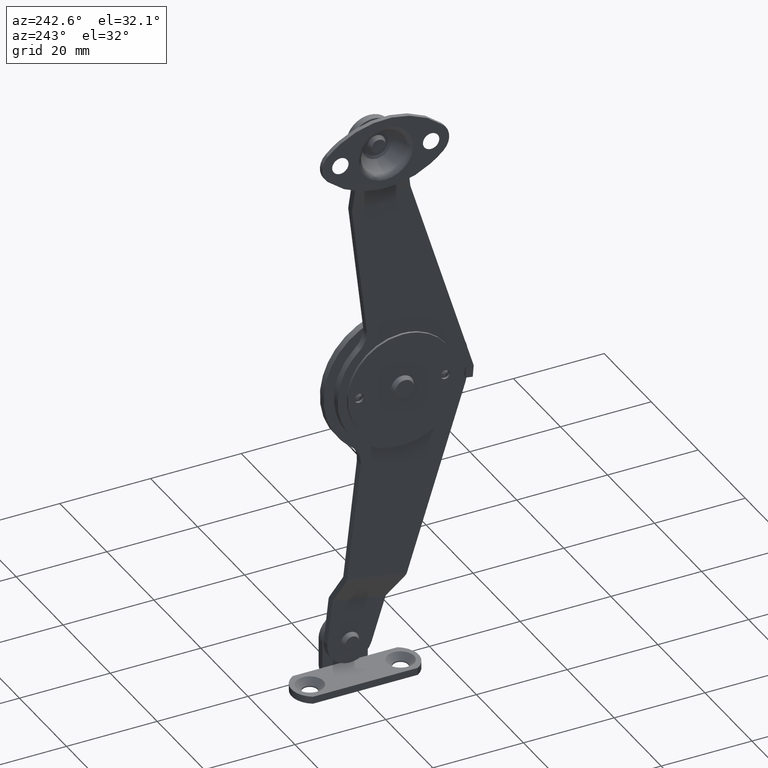
[diagram: clean part render]
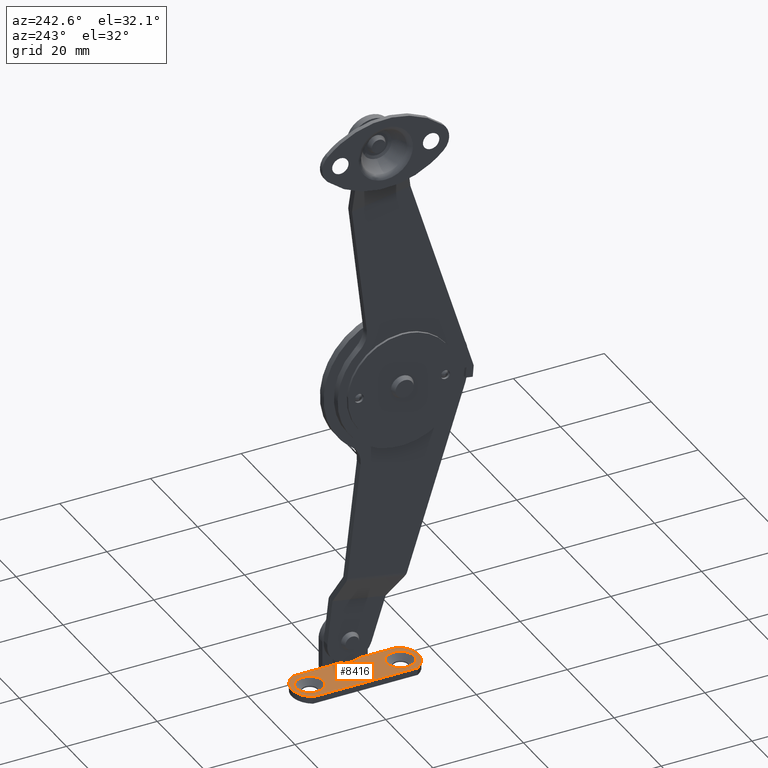
[diagram: same view with one face highlighted and labeled with its STEP entity id]
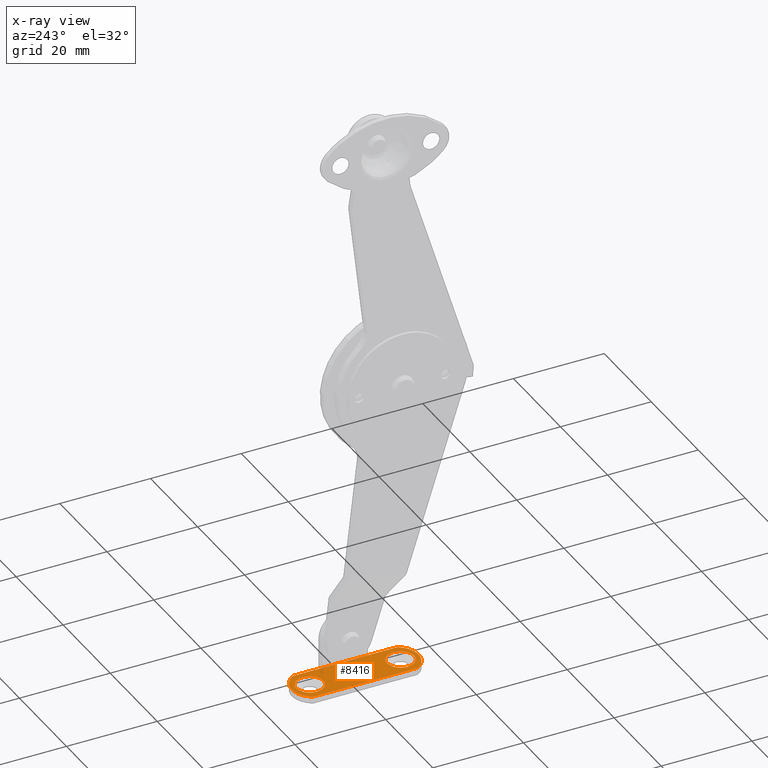
[diagram: x-ray of the same camera — body ghosted, the highlighted face saturated]
A machine part, auxiliary view. The second image highlights one B-rep face of the part: STEP entity #8416.
The next image is the same camera in x-ray: the body ghosted, the highlighted face saturated — about 0% of this face is hidden behind the body in this view.
In plain terms, the highlighted face is a freeform B-spline surface patch.
Its self-contained STEP definition (entity closure, byte-faithful):
#7144=CARTESIAN_POINT('',(13.342303060658480,-12.980407713777140,-66.499999745720089));
#7145=VERTEX_POINT('',#7144);
#7151=CARTESIAN_POINT('',(16.0,-10.0,-66.500000000000000));
#7152=VERTEX_POINT('',#7151);
#7153=CARTESIAN_POINT('',(13.342303060658486,-12.980407713777142,-66.499999745720089));
#7154=CARTESIAN_POINT('',(16.000000000000004,-12.675168079859535,-66.500000000000000));
#7155=CARTESIAN_POINT('',(16.0,-10.0,-66.500000000000000));
#7163=(BOUNDED_CURVE()B_SPLINE_CURVE(2,(#7153,#7154,#7155),.UNSPECIFIED.,.F.,.U.)B_SPLINE_CURVE_WITH_KNOTS((3,3),(0.269767814784498,0.500000000000000),.UNSPECIFIED.)CURVE()GEOMETRIC_REPRESENTATION_ITEM()RATIONAL_B_SPLINE_CURVE((0.957343620259238,0.730266216791106,1.0))REPRESENTATION_ITEM(''));
#7164=EDGE_CURVE('',#7145,#7152,#7163,.T.);
#7166=CARTESIAN_POINT('',(13.183146121672220,-7.005595526214339,-66.499999890914779));
#7167=VERTEX_POINT('',#7166);
#7168=CARTESIAN_POINT('',(16.0,-10.0,-66.500000000000000));
#7169=CARTESIAN_POINT('',(15.999999999999995,-7.177882736724869,-66.499999999999986));
#7170=CARTESIAN_POINT('',(13.183146121672230,-7.005595526214339,-66.499999890914779));
#7178=(BOUNDED_CURVE()B_SPLINE_CURVE(2,(#7168,#7169,#7170),.UNSPECIFIED.,.F.,.U.)B_SPLINE_CURVE_WITH_KNOTS((3,3),(0.500000000000000,0.739332905032843),.UNSPECIFIED.)CURVE()GEOMETRIC_REPRESENTATION_ITEM()RATIONAL_B_SPLINE_CURVE((1.0,0.719604060307825,0.976071919063187))REPRESENTATION_ITEM(''));
#7179=EDGE_CURVE('',#7152,#7167,#7178,.T.);
#7274=CARTESIAN_POINT('',(9.999999999999998,-10.0,-66.500000000000000));
#7275=VERTEX_POINT('',#7274);
#7276=CARTESIAN_POINT('',(13.183146121672227,-7.005595526214340,-66.499999890914779));
#7277=CARTESIAN_POINT('',(13.091658787695817,-6.999999999999999,-66.499999999999986));
#7278=CARTESIAN_POINT('',(13.0,-7.0,-66.500000000000000));
#7279=CARTESIAN_POINT('',(9.999999999999998,-6.999999999999999,-66.500000000000000));
#7280=CARTESIAN_POINT('',(9.999999999999998,-10.0,-66.500000000000000));
#7288=(BOUNDED_CURVE()B_SPLINE_CURVE(2,(#7276,#7277,#7278,#7279,#7280),.UNSPECIFIED.,.F.,.U.)B_SPLINE_CURVE_WITH_KNOTS((3,2,3),(0.739332905032842,0.750000000000000,1.0),.UNSPECIFIED.)CURVE()GEOMETRIC_REPRESENTATION_ITEM()RATIONAL_B_SPLINE_CURVE((0.976071919063185,0.987502720878721,1.0,0.707106781186548,1.0))REPRESENTATION_ITEM(''));
#7289=EDGE_CURVE('',#7167,#7275,#7288,.T.);
#7291=CARTESIAN_POINT('',(9.999999999999998,-10.0,-66.500000000000000));
#7292=CARTESIAN_POINT('',(9.999999999999998,-13.000000000000004,-66.500000000000000));
#7293=CARTESIAN_POINT('',(13.0,-13.0,-66.500000000000000));
#7294=CARTESIAN_POINT('',(13.171712228908214,-13.0,-66.500000000000000));
#7295=CARTESIAN_POINT('',(13.342303060658486,-12.980407713777142,-66.499999745720089));
#7303=(BOUNDED_CURVE()B_SPLINE_CURVE(2,(#7291,#7292,#7293,#7294,#7295),.UNSPECIFIED.,.F.,.U.)B_SPLINE_CURVE_WITH_KNOTS((3,2,3),(0.0,0.250000000000000,0.269767814784498),.UNSPECIFIED.)CURVE()GEOMETRIC_REPRESENTATION_ITEM()RATIONAL_B_SPLINE_CURVE((1.0,0.707106781186548,1.0,0.976840564395442,0.957343620259238))REPRESENTATION_ITEM(''));
#7304=EDGE_CURVE('',#7275,#7145,#7303,.T.);
#7472=CARTESIAN_POINT('',(13.342303060658480,7.019592286222867,-66.499999745720089));
#7473=VERTEX_POINT('',#7472);
#7479=CARTESIAN_POINT('',(16.0,10.0,-66.500000000000000));
#7480=VERTEX_POINT('',#7479);
#7481=CARTESIAN_POINT('',(13.342303060658477,7.019592286222867,-66.499999745720089));
#7482=CARTESIAN_POINT('',(15.999999999999998,7.324831920140462,-66.500000000000000));
#7483=CARTESIAN_POINT('',(16.0,10.0,-66.500000000000000));
#7491=(BOUNDED_CURVE()B_SPLINE_CURVE(2,(#7481,#7482,#7483),.UNSPECIFIED.,.F.,.U.)B_SPLINE_CURVE_WITH_KNOTS((3,3),(0.269767814784497,0.500000000000000),.UNSPECIFIED.)CURVE()GEOMETRIC_REPRESENTATION_ITEM()RATIONAL_B_SPLINE_CURVE((0.957343620259239,0.730266216791106,1.0))REPRESENTATION_ITEM(''));
#7492=EDGE_CURVE('',#7473,#7480,#7491,.T.);
#7494=CARTESIAN_POINT('',(13.183146121672220,12.994404473785661,-66.499999890914765));
#7495=VERTEX_POINT('',#7494);
#7496=CARTESIAN_POINT('',(16.0,10.0,-66.500000000000000));
#7497=CARTESIAN_POINT('',(15.999999999999995,12.822117263275132,-66.499999999999986));
#7498=CARTESIAN_POINT('',(13.183146121672230,12.994404473785663,-66.499999890914765));
#7506=(BOUNDED_CURVE()B_SPLINE_CURVE(2,(#7496,#7497,#7498),.UNSPECIFIED.,.F.,.U.)B_SPLINE_CURVE_WITH_KNOTS((3,3),(0.500000000000000,0.739332905032843),.UNSPECIFIED.)CURVE()GEOMETRIC_REPRESENTATION_ITEM()RATIONAL_B_SPLINE_CURVE((1.0,0.719604060307825,0.976071919063187))REPRESENTATION_ITEM(''));
#7507=EDGE_CURVE('',#7480,#7495,#7506,.T.);
#7602=CARTESIAN_POINT('',(9.999999999999998,10.0,-66.500000000000000));
#7603=VERTEX_POINT('',#7602);
#7604=CARTESIAN_POINT('',(13.183146121672227,12.994404473785659,-66.499999890914779));
#7605=CARTESIAN_POINT('',(13.091658787695817,13.000000000000004,-66.499999999999986));
#7606=CARTESIAN_POINT('',(13.0,13.0,-66.500000000000000));
#7607=CARTESIAN_POINT('',(9.999999999999998,13.000000000000004,-66.500000000000000));
#7608=CARTESIAN_POINT('',(9.999999999999998,10.0,-66.500000000000000));
#7616=(BOUNDED_CURVE()B_SPLINE_CURVE(2,(#7604,#7605,#7606,#7607,#7608),.UNSPECIFIED.,.F.,.U.)B_SPLINE_CURVE_WITH_KNOTS((3,2,3),(0.739332905032842,0.750000000000000,1.0),.UNSPECIFIED.)CURVE()GEOMETRIC_REPRESENTATION_ITEM()RATIONAL_B_SPLINE_CURVE((0.976071919063185,0.987502720878721,1.0,0.707106781186548,1.0))REPRESENTATION_ITEM(''));
#7617=EDGE_CURVE('',#7495,#7603,#7616,.T.);
#7619=CARTESIAN_POINT('',(9.999999999999998,10.0,-66.500000000000000));
#7620=CARTESIAN_POINT('',(9.999999999999998,6.999999999999999,-66.500000000000000));
#7621=CARTESIAN_POINT('',(13.0,7.0,-66.500000000000000));
#7622=CARTESIAN_POINT('',(13.171712228908211,6.999999999999999,-66.500000000000000));
#7623=CARTESIAN_POINT('',(13.342303060658477,7.019592286222867,-66.499999745720089));
#7631=(BOUNDED_CURVE()B_SPLINE_CURVE(2,(#7619,#7620,#7621,#7622,#7623),.UNSPECIFIED.,.F.,.U.)B_SPLINE_CURVE_WITH_KNOTS((3,2,3),(0.0,0.250000000000000,0.269767814784497),.UNSPECIFIED.)CURVE()GEOMETRIC_REPRESENTATION_ITEM()RATIONAL_B_SPLINE_CURVE((1.0,0.707106781186548,1.0,0.976840564395442,0.957343620259239))REPRESENTATION_ITEM(''));
#7632=EDGE_CURVE('',#7603,#7473,#7631,.T.);
#8087=CARTESIAN_POINT('',(17.300003000000000,5.0,-66.500000000000000));
#8088=VERTEX_POINT('',#8087);
#8094=CARTESIAN_POINT('',(17.300003000000000,-5.0,-66.500000000000000));
#8095=VERTEX_POINT('',#8094);
#8096=CARTESIAN_POINT('',(17.300003000000000,-5.0,-66.500000000000000));
#8097=CARTESIAN_POINT('',(17.300003000000000,5.0,-66.500000000000000));
#8098=QUASI_UNIFORM_CURVE('',1,(#8096,#8097),.UNSPECIFIED.,.F.,.U.);
#8099=EDGE_CURVE('',#8095,#8088,#8098,.T.);
#8203=CARTESIAN_POINT('',(8.700012196842371,-11.551494719696199,-66.500000000000000));
#8204=VERTEX_POINT('',#8203);
#8205=CARTESIAN_POINT('',(17.300003000000000,-11.551469000000020,-66.500000000000000));
#8206=VERTEX_POINT('',#8205);
#8207=CARTESIAN_POINT('',(8.700012196842389,-11.551494719696191,-66.500000000000000));
#8208=CARTESIAN_POINT('',(10.152893156801360,-14.000012505411432,-66.500000000000000));
#8209=CARTESIAN_POINT('',(13.000014936898380,-14.000003999977690,-66.500000000000000));
#8210=CARTESIAN_POINT('',(15.847136716995401,-13.999995494543949,-66.500000000000000));
#8211=CARTESIAN_POINT('',(17.300003000000000,-11.551469000000020,-66.500000000000000));
#8219=(BOUNDED_CURVE()B_SPLINE_CURVE(2,(#8207,#8208,#8209,#8210,#8211),.UNSPECIFIED.,.F.,.U.)B_SPLINE_CURVE_WITH_KNOTS((3,2,3),(0.0,0.500000000000000,1.0),.UNSPECIFIED.)CURVE()GEOMETRIC_REPRESENTATION_ITEM()RATIONAL_B_SPLINE_CURVE((1.0,0.868992397779672,1.0,0.868992397779672,1.0))REPRESENTATION_ITEM(''));
#8220=EDGE_CURVE('',#8204,#8206,#8219,.T.);
#8241=CARTESIAN_POINT('',(17.300003000000000,-5.0,-66.500000000000000));
#8242=CARTESIAN_POINT('',(17.300003000000000,-11.551469000000020,-66.500000000000000));
#8243=QUASI_UNIFORM_CURVE('',1,(#8241,#8242),.UNSPECIFIED.,.F.,.U.);
#8244=EDGE_CURVE('',#8095,#8206,#8243,.T.);
#8317=CARTESIAN_POINT('',(17.300003032995551,11.551469052911520,-66.500000000000000));
#8318=VERTEX_POINT('',#8317);
#8319=CARTESIAN_POINT('',(17.300003032995551,11.551469052911520,-66.500000000000000));
#8320=CARTESIAN_POINT('',(17.300003000000000,5.0,-66.500000000000000));
#8321=QUASI_UNIFORM_CURVE('',1,(#8319,#8320),.UNSPECIFIED.,.F.,.U.);
#8322=EDGE_CURVE('',#8318,#8088,#8321,.T.);
#8348=CARTESIAN_POINT('',(8.700012196842382,11.551494719696160,-66.500000000000000));
#8349=VERTEX_POINT('',#8348);
#8350=CARTESIAN_POINT('',(17.300003032995580,11.551469052911530,-66.500000000000000));
#8351=CARTESIAN_POINT('',(15.847136693171795,13.999995502705731,-66.500000000000000));
#8352=CARTESIAN_POINT('',(13.000014922565111,14.000003999977730,-66.500000000000000));
#8353=CARTESIAN_POINT('',(10.152893151958420,14.000012497249729,-66.500000000000000));
#8354=CARTESIAN_POINT('',(8.700012196842375,11.551494719696169,-66.500000000000000));
#8362=(BOUNDED_CURVE()B_SPLINE_CURVE(2,(#8350,#8351,#8352,#8353,#8354),.UNSPECIFIED.,.F.,.U.)B_SPLINE_CURVE_WITH_KNOTS((3,2,3),(0.0,0.500000000000000,1.0),.UNSPECIFIED.)CURVE()GEOMETRIC_REPRESENTATION_ITEM()RATIONAL_B_SPLINE_CURVE((1.0,0.868992398488917,1.0,0.868992398488917,1.0))REPRESENTATION_ITEM(''));
#8363=EDGE_CURVE('',#8318,#8349,#8362,.T.);
#8380=CARTESIAN_POINT('',(8.700012196842371,-11.551494719696199,-66.500000000000000));
#8381=CARTESIAN_POINT('',(8.700012196842382,11.551494719696160,-66.500000000000000));
#8382=QUASI_UNIFORM_CURVE('',1,(#8380,#8381),.UNSPECIFIED.,.F.,.U.);
#8383=EDGE_CURVE('',#8204,#8349,#8382,.T.);
#8391=CARTESIAN_POINT('',(8.270442671244972,-15.398604345306090,-66.500000000000000));
#8392=CARTESIAN_POINT('',(17.729572789262679,-15.398604345306090,-66.500000000000000));
#8393=CARTESIAN_POINT('',(8.270442671244972,15.398605096324760,-66.500000000000000));
#8394=CARTESIAN_POINT('',(17.729572789262679,15.398605096324760,-66.500000000000000));
#8395=B_SPLINE_SURFACE_WITH_KNOTS('',1,1,((#8391,#8393),(#8392,#8394)),.UNSPECIFIED.,.F.,.F.,.U.,(2,2),(2,2),(0.0,9.459130118017708),(0.0,30.797209441630852),.UNSPECIFIED.);
#8396=ORIENTED_EDGE('',*,*,#8099,.T.);
#8397=ORIENTED_EDGE('',*,*,#8322,.F.);
#8398=ORIENTED_EDGE('',*,*,#8363,.T.);
#8399=ORIENTED_EDGE('',*,*,#8383,.F.);
#8400=ORIENTED_EDGE('',*,*,#8220,.T.);
#8401=ORIENTED_EDGE('',*,*,#8244,.F.);
#8402=EDGE_LOOP('',(#8396,#8397,#8398,#8399,#8400,#8401));
#8403=FACE_OUTER_BOUND('',#8402,.T.);
#8404=ORIENTED_EDGE('',*,*,#7507,.F.);
#8405=ORIENTED_EDGE('',*,*,#7492,.F.);
#8406=ORIENTED_EDGE('',*,*,#7632,.F.);
#8407=ORIENTED_EDGE('',*,*,#7617,.F.);
#8408=EDGE_LOOP('',(#8404,#8405,#8406,#8407));
#8409=FACE_BOUND('',#8408,.T.);
#8410=ORIENTED_EDGE('',*,*,#7179,.F.);
#8411=ORIENTED_EDGE('',*,*,#7164,.F.);
#8412=ORIENTED_EDGE('',*,*,#7304,.F.);
#8413=ORIENTED_EDGE('',*,*,#7289,.F.);
#8414=EDGE_LOOP('',(#8410,#8411,#8412,#8413));
#8415=FACE_BOUND('',#8414,.T.);
#8416=ADVANCED_FACE('',(#8403,#8409,#8415),#8395,.T.);